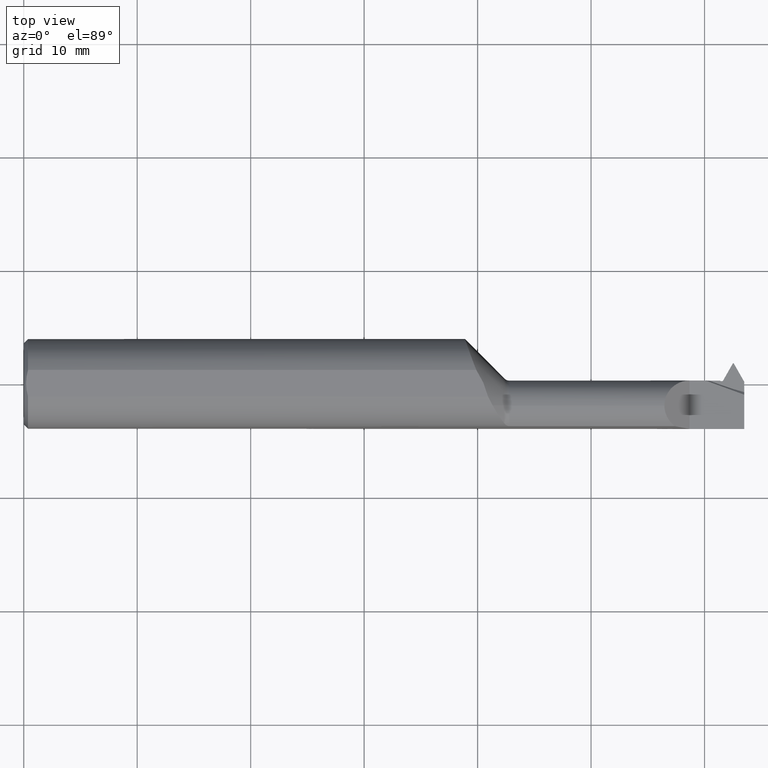
[diagram: clean part render]
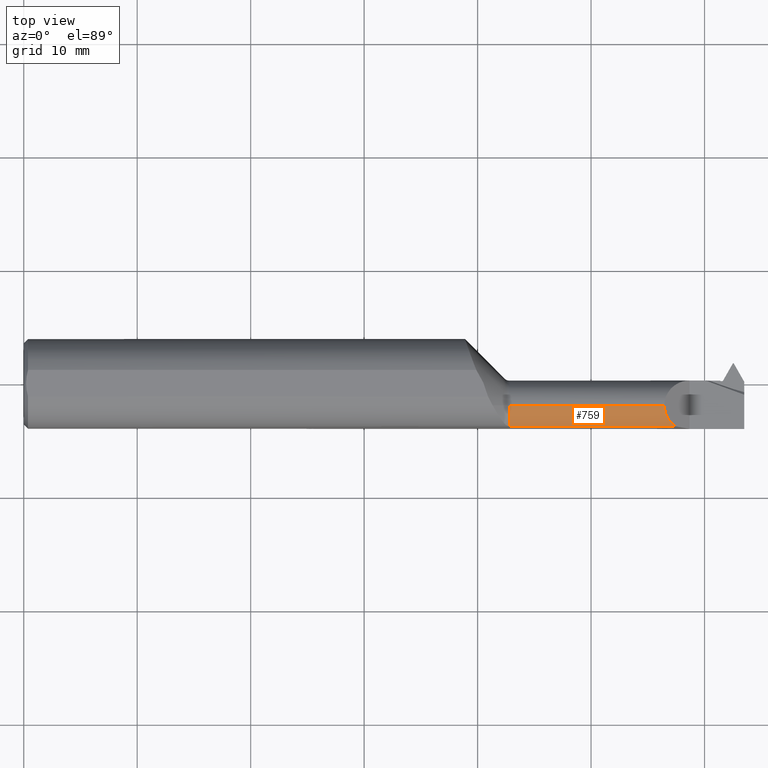
[diagram: same view with one face highlighted and labeled with its STEP entity id]
A machine part, top view. The second image highlights one B-rep face of the part: STEP entity #759.
In plain terms, the highlighted cylindrical surface (edge-blend (fillet) strip) has radius 2.2352 mm, axis along (-1, -0, -0).
Its self-contained STEP definition (entity closure, byte-faithful):
#21 = ORIENTED_EDGE ( 'NONE', *, *, #206, .T. ) ;
#74 = DIRECTION ( 'NONE',  ( 0.000000000000000000, 0.000000000000000000, 1.000000000000000000 ) ) ;
#84 = CARTESIAN_POINT ( 'NONE',  ( 2.222899999999999210, -0.1048058126387025196, 0.08800000000000000877 ) ) ;
#119 = EDGE_CURVE ( 'NONE', #564, #667, #859, .T. ) ;
#157 = DIRECTION ( 'NONE',  ( -1.000000000000000000, -0.000000000000000000, -0.000000000000000000 ) ) ;
#184 = VECTOR ( 'NONE', #157, 39.37007874015748143 ) ;
#198 = CARTESIAN_POINT ( 'NONE',  ( 1.685355339059326996, -0.07609999999999980669, 0.08799999999999999489 ) ) ;
#206 = EDGE_CURVE ( 'NONE', #291, #570, #788, .T. ) ;
#259 = DIRECTION ( 'NONE',  ( 0.000000000000000000, 0.000000000000000000, 1.000000000000000000 ) ) ;
#291 = VERTEX_POINT ( 'NONE', #630 ) ;
#337 = CARTESIAN_POINT ( 'NONE',  ( 1.685355339059326996, -0.07609999999999980669, 0.000000000000000000 ) ) ;
#409 = CIRCLE ( 'NONE', #993, 0.08799999999999999489 ) ;
#498 = DIRECTION ( 'NONE',  ( -1.000000000000000000, -0.000000000000000000, -0.000000000000000000 ) ) ;
#535 = ORIENTED_EDGE ( 'NONE', *, *, #119, .T. ) ;
#539 =( BOUNDED_CURVE ( )  B_SPLINE_CURVE ( 3, ( #652, #965, #84, #809 ),
 .UNSPECIFIED., .F., .T. ) 
 B_SPLINE_CURVE_WITH_KNOTS ( ( 4, 4 ),
 ( 5.341171000978993888, 6.283185307179586232 ),
 .UNSPECIFIED. ) 
 CURVE ( )  GEOMETRIC_REPRESENTATION_ITEM ( )  RATIONAL_B_SPLINE_CURVE ( ( 1.000000000000000000, 0.9274078068410984699, 0.9274078068410984699, 1.000000000000000000 ) ) 
 REPRESENTATION_ITEM ( '' )  );
#550 = CARTESIAN_POINT ( 'NONE',  ( 1.675000000000000044, -0.07609999999999980669, 0.08799999999999999489 ) ) ;
#564 = VERTEX_POINT ( 'NONE', #1007 ) ;
#570 = VERTEX_POINT ( 'NONE', #198 ) ;
#583 = FACE_OUTER_BOUND ( 'NONE', #860, .T. ) ;
#597 = DIRECTION ( 'NONE',  ( 1.000000000000000000, 0.000000000000000000, 0.000000000000000000 ) ) ;
#630 = CARTESIAN_POINT ( 'NONE',  ( 2.222899999999999210, -0.07609999999999980669, 0.08799999999999999489 ) ) ;
#652 = CARTESIAN_POINT ( 'NONE',  ( 2.259141905890882374, -0.1472695137976348934, 0.05175809410911716424 ) ) ;
#663 = CARTESIAN_POINT ( 'NONE',  ( 1.675000000000000044, -0.07609999999999980669, 0.000000000000000000 ) ) ;
#667 = VERTEX_POINT ( 'NONE', #781 ) ;
#737 = CYLINDRICAL_SURFACE ( 'NONE', #1005, 0.08799999999999999489 ) ;
#759 = ADVANCED_FACE ( 'NONE', ( #583 ), #737, .T. ) ;
#764 = VECTOR ( 'NONE', #597, 39.37007874015748143 ) ;
#781 = CARTESIAN_POINT ( 'NONE',  ( 2.259141905890882374, -0.1472695137976348934, 0.05175809410911716424 ) ) ;
#788 = LINE ( 'NONE', #550, #184 ) ;
#809 = CARTESIAN_POINT ( 'NONE',  ( 2.222899999999999210, -0.07609999999999980669, 0.08799999999999999489 ) ) ;
#847 = EDGE_CURVE ( 'NONE', #667, #291, #539, .T. ) ;
#853 = CARTESIAN_POINT ( 'NONE',  ( 2.048999999999999932, -0.1472695137976348101, 0.05175809410911725444 ) ) ;
#854 = EDGE_CURVE ( 'NONE', #570, #564, #409, .T. ) ;
#859 = LINE ( 'NONE', #853, #764 ) ;
#860 = EDGE_LOOP ( 'NONE', ( #920, #21, #1035, #535 ) ) ;
#920 = ORIENTED_EDGE ( 'NONE', *, *, #847, .T. ) ;
#965 = CARTESIAN_POINT ( 'NONE',  ( 2.235926238519717835, -0.1303858984336273841, 0.07497376148028173093 ) ) ;
#980 = DIRECTION ( 'NONE',  ( 1.000000000000000000, 0.000000000000000000, 0.000000000000000000 ) ) ;
#993 = AXIS2_PLACEMENT_3D ( 'NONE', #337, #980, #259 ) ;
#1005 = AXIS2_PLACEMENT_3D ( 'NONE', #663, #498, #74 ) ;
#1007 = CARTESIAN_POINT ( 'NONE',  ( 1.685355339059326996, -0.1472695137976348101, 0.05175809410911725444 ) ) ;
#1035 = ORIENTED_EDGE ( 'NONE', *, *, #854, .T. ) ;